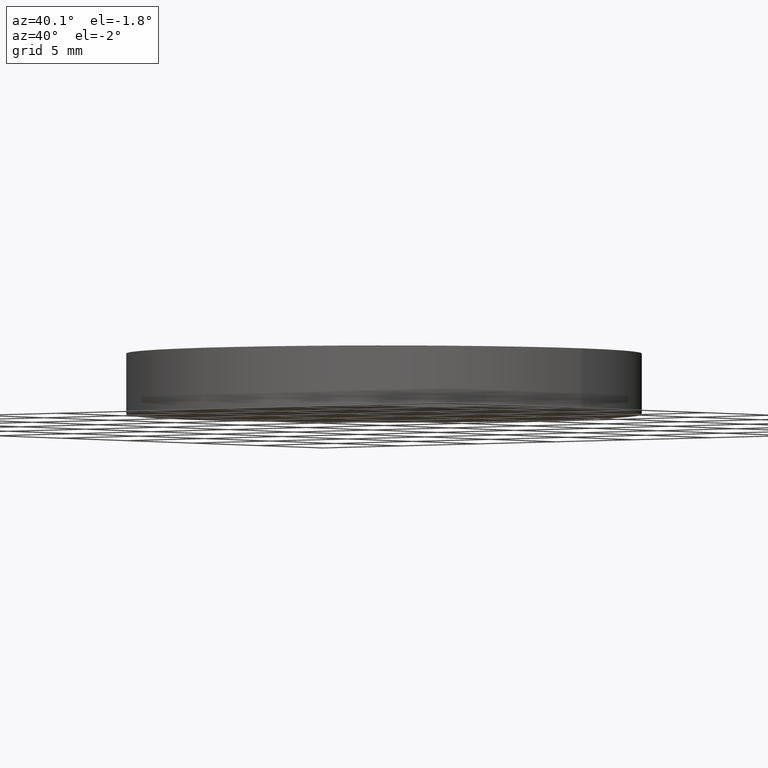
[diagram: clean part render]
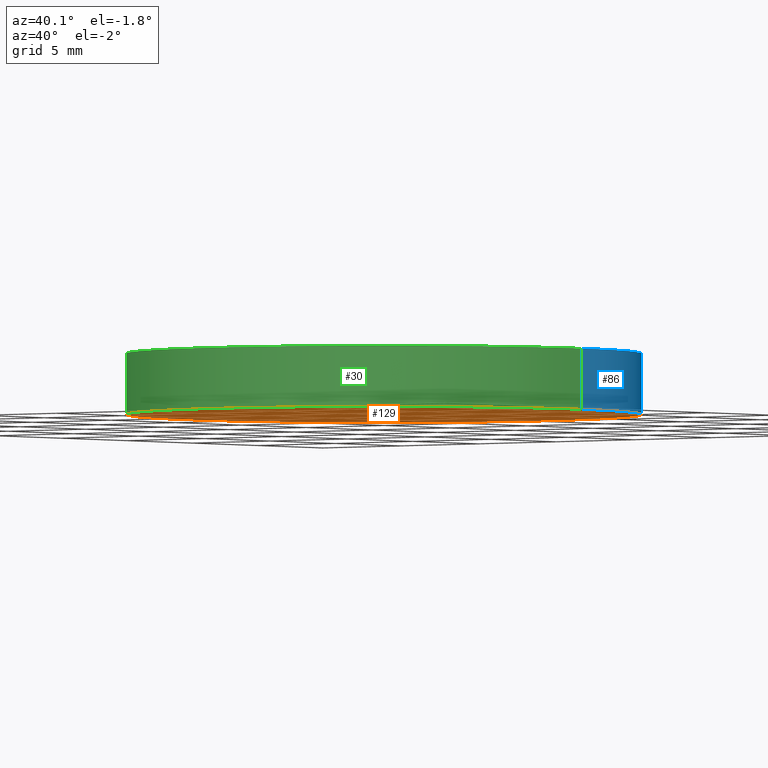
[diagram: same view with three faces highlighted in distinct colors, each labeled with its STEP entity id]
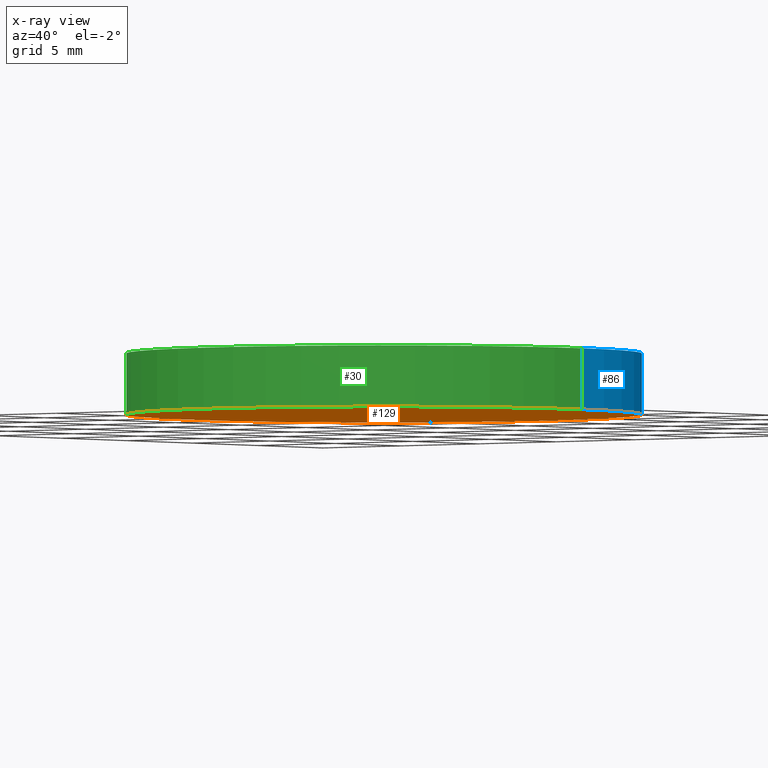
[diagram: x-ray of the same camera — body ghosted, the three highlighted faces saturated]
A machine part, auxiliary view with three faces highlighted in distinct colors.
The next image is the same camera in x-ray (body ghosted, the three faces saturated) — at least one of them is partly hidden behind the body in this view.
Their STEP definitions:

[orange] entity #129 — the highlighted planar face has unit normal (0, 0, 1).
#4 = DIRECTION ( 'NONE',  ( 0.0000000000000000000, 0.0000000000000000000, 1.000000000000000000 ) ) ;
#10 = CIRCLE ( 'NONE', #62, 12.69999999999999900 ) ;
#15 = DIRECTION ( 'NONE',  ( 1.000000000000000000, 0.0000000000000000000, 0.0000000000000000000 ) ) ;
#25 = CARTESIAN_POINT ( 'NONE',  ( 0.0000000000000000000, 0.0000000000000000000, 0.0000000000000000000 ) ) ;
#32 = ORIENTED_EDGE ( 'NONE', *, *, #64, .F. ) ;
#34 = ORIENTED_EDGE ( 'NONE', *, *, #95, .F. ) ;
#47 = DIRECTION ( 'NONE',  ( 0.0000000000000000000, 0.0000000000000000000, 1.000000000000000000 ) ) ;
#50 = AXIS2_PLACEMENT_3D ( 'NONE', #82, #4, #71 ) ;
#62 = AXIS2_PLACEMENT_3D ( 'NONE', #25, #92, #15 ) ;
#63 = FACE_OUTER_BOUND ( 'NONE', #140, .T. ) ;
#64 = EDGE_CURVE ( 'NONE', #94, #134, #10, .T. ) ;
#71 = DIRECTION ( 'NONE',  ( 1.000000000000000000, 0.0000000000000000000, 0.0000000000000000000 ) ) ;
#75 = AXIS2_PLACEMENT_3D ( 'NONE', #133, #47, #111 ) ;
#82 = CARTESIAN_POINT ( 'NONE',  ( 0.0000000000000000000, 0.0000000000000000000, 0.0000000000000000000 ) ) ;
#92 = DIRECTION ( 'NONE',  ( 0.0000000000000000000, 0.0000000000000000000, 1.000000000000000000 ) ) ;
#94 = VERTEX_POINT ( 'NONE', #112 ) ;
#95 = EDGE_CURVE ( 'NONE', #134, #94, #120, .T. ) ;
#111 = DIRECTION ( 'NONE',  ( 1.000000000000000000, 0.0000000000000000000, -0.0000000000000000000 ) ) ;
#112 = CARTESIAN_POINT ( 'NONE',  ( -12.69999999999999900, 0.0000000000000000000, 0.0000000000000000000 ) ) ;
#120 = CIRCLE ( 'NONE', #50, 12.69999999999999900 ) ;
#122 = CARTESIAN_POINT ( 'NONE',  ( 12.69999999999999900, 1.555301434917138400E-015, 0.0000000000000000000 ) ) ;
#129 = ADVANCED_FACE ( 'NONE', ( #63 ), #136, .F. ) ;
#133 = CARTESIAN_POINT ( 'NONE',  ( 0.0000000000000000000, 0.0000000000000000000, 0.0000000000000000000 ) ) ;
#134 = VERTEX_POINT ( 'NONE', #122 ) ;
#136 = PLANE ( 'NONE',  #75 ) ;
#140 = EDGE_LOOP ( 'NONE', ( #32, #34 ) ) ;

[blue] entity #86 — the highlighted cylindrical surface (partial cylindrical patch) has radius 12.7 mm, axis along (-0, -0, -1).
#4 = DIRECTION ( 'NONE',  ( 0.0000000000000000000, 0.0000000000000000000, 1.000000000000000000 ) ) ;
#16 = CARTESIAN_POINT ( 'NONE',  ( -12.69999999999999900, 0.0000000000000000000, 3.000000000000000000 ) ) ;
#18 = DIRECTION ( 'NONE',  ( -0.0000000000000000000, -0.0000000000000000000, -1.000000000000000000 ) ) ;
#21 = AXIS2_PLACEMENT_3D ( 'NONE', #124, #49, #113 ) ;
#24 = DIRECTION ( 'NONE',  ( -0.0000000000000000000, -0.0000000000000000000, -1.000000000000000000 ) ) ;
#28 = ORIENTED_EDGE ( 'NONE', *, *, #95, .T. ) ;
#39 = VERTEX_POINT ( 'NONE', #16 ) ;
#40 = CARTESIAN_POINT ( 'NONE',  ( -12.69999999999999900, 0.0000000000000000000, 3.000000000000000000 ) ) ;
#42 = VECTOR ( 'NONE', #18, 1000.000000000000000 ) ;
#49 = DIRECTION ( 'NONE',  ( 0.0000000000000000000, 0.0000000000000000000, 1.000000000000000000 ) ) ;
#50 = AXIS2_PLACEMENT_3D ( 'NONE', #82, #4, #71 ) ;
#53 = EDGE_CURVE ( 'NONE', #39, #94, #127, .T. ) ;
#55 = ORIENTED_EDGE ( 'NONE', *, *, #53, .F. ) ;
#57 = EDGE_CURVE ( 'NONE', #66, #39, #99, .T. ) ;
#61 = CARTESIAN_POINT ( 'NONE',  ( 0.0000000000000000000, 0.0000000000000000000, 3.000000000000000000 ) ) ;
#66 = VERTEX_POINT ( 'NONE', #73 ) ;
#69 = LINE ( 'NONE', #91, #89 ) ;
#71 = DIRECTION ( 'NONE',  ( 1.000000000000000000, 0.0000000000000000000, 0.0000000000000000000 ) ) ;
#73 = CARTESIAN_POINT ( 'NONE',  ( 12.69999999999999900, 1.555301434917138400E-015, 3.000000000000000000 ) ) ;
#82 = CARTESIAN_POINT ( 'NONE',  ( 0.0000000000000000000, 0.0000000000000000000, 0.0000000000000000000 ) ) ;
#86 = ADVANCED_FACE ( 'NONE', ( #97 ), #117, .T. ) ;
#87 = EDGE_LOOP ( 'NONE', ( #114, #109, #28, #55 ) ) ;
#89 = VECTOR ( 'NONE', #24, 1000.000000000000000 ) ;
#91 = CARTESIAN_POINT ( 'NONE',  ( 12.69999999999999900, 1.555301434917138400E-015, 3.000000000000000000 ) ) ;
#94 = VERTEX_POINT ( 'NONE', #112 ) ;
#95 = EDGE_CURVE ( 'NONE', #134, #94, #120, .T. ) ;
#97 = FACE_OUTER_BOUND ( 'NONE', #87, .T. ) ;
#99 = CIRCLE ( 'NONE', #21, 12.69999999999999900 ) ;
#106 = EDGE_CURVE ( 'NONE', #66, #134, #69, .T. ) ;
#109 = ORIENTED_EDGE ( 'NONE', *, *, #106, .T. ) ;
#112 = CARTESIAN_POINT ( 'NONE',  ( -12.69999999999999900, 0.0000000000000000000, 0.0000000000000000000 ) ) ;
#113 = DIRECTION ( 'NONE',  ( 1.000000000000000000, 0.0000000000000000000, 0.0000000000000000000 ) ) ;
#114 = ORIENTED_EDGE ( 'NONE', *, *, #57, .F. ) ;
#117 = CYLINDRICAL_SURFACE ( 'NONE', #128, 12.69999999999999900 ) ;
#120 = CIRCLE ( 'NONE', #50, 12.69999999999999900 ) ;
#122 = CARTESIAN_POINT ( 'NONE',  ( 12.69999999999999900, 1.555301434917138400E-015, 0.0000000000000000000 ) ) ;
#123 = DIRECTION ( 'NONE',  ( -0.0000000000000000000, -0.0000000000000000000, -1.000000000000000000 ) ) ;
#124 = CARTESIAN_POINT ( 'NONE',  ( 0.0000000000000000000, 0.0000000000000000000, 3.000000000000000000 ) ) ;
#127 = LINE ( 'NONE', #40, #42 ) ;
#128 = AXIS2_PLACEMENT_3D ( 'NONE', #61, #123, #135 ) ;
#134 = VERTEX_POINT ( 'NONE', #122 ) ;
#135 = DIRECTION ( 'NONE',  ( -1.000000000000000000, 0.0000000000000000000, 0.0000000000000000000 ) ) ;

[green] entity #30 — the highlighted cylindrical surface (partial cylindrical patch) has radius 12.7 mm, axis along (-0, -0, -1).
#10 = CIRCLE ( 'NONE', #62, 12.69999999999999900 ) ;
#15 = DIRECTION ( 'NONE',  ( 1.000000000000000000, 0.0000000000000000000, 0.0000000000000000000 ) ) ;
#16 = CARTESIAN_POINT ( 'NONE',  ( -12.69999999999999900, 0.0000000000000000000, 3.000000000000000000 ) ) ;
#18 = DIRECTION ( 'NONE',  ( -0.0000000000000000000, -0.0000000000000000000, -1.000000000000000000 ) ) ;
#22 = CIRCLE ( 'NONE', #29, 12.69999999999999900 ) ;
#24 = DIRECTION ( 'NONE',  ( -0.0000000000000000000, -0.0000000000000000000, -1.000000000000000000 ) ) ;
#25 = CARTESIAN_POINT ( 'NONE',  ( 0.0000000000000000000, 0.0000000000000000000, 0.0000000000000000000 ) ) ;
#26 = DIRECTION ( 'NONE',  ( 0.0000000000000000000, 0.0000000000000000000, 1.000000000000000000 ) ) ;
#27 = CARTESIAN_POINT ( 'NONE',  ( 0.0000000000000000000, 0.0000000000000000000, 3.000000000000000000 ) ) ;
#29 = AXIS2_PLACEMENT_3D ( 'NONE', #103, #26, #93 ) ;
#30 = ADVANCED_FACE ( 'NONE', ( #130 ), #52, .T. ) ;
#37 = DIRECTION ( 'NONE',  ( -1.000000000000000000, 0.0000000000000000000, 0.0000000000000000000 ) ) ;
#39 = VERTEX_POINT ( 'NONE', #16 ) ;
#40 = CARTESIAN_POINT ( 'NONE',  ( -12.69999999999999900, 0.0000000000000000000, 3.000000000000000000 ) ) ;
#42 = VECTOR ( 'NONE', #18, 1000.000000000000000 ) ;
#45 = EDGE_CURVE ( 'NONE', #39, #66, #22, .T. ) ;
#52 = CYLINDRICAL_SURFACE ( 'NONE', #138, 12.69999999999999900 ) ;
#53 = EDGE_CURVE ( 'NONE', #39, #94, #127, .T. ) ;
#58 = ORIENTED_EDGE ( 'NONE', *, *, #53, .T. ) ;
#62 = AXIS2_PLACEMENT_3D ( 'NONE', #25, #92, #15 ) ;
#64 = EDGE_CURVE ( 'NONE', #94, #134, #10, .T. ) ;
#66 = VERTEX_POINT ( 'NONE', #73 ) ;
#69 = LINE ( 'NONE', #91, #89 ) ;
#73 = CARTESIAN_POINT ( 'NONE',  ( 12.69999999999999900, 1.555301434917138400E-015, 3.000000000000000000 ) ) ;
#85 = ORIENTED_EDGE ( 'NONE', *, *, #106, .F. ) ;
#89 = VECTOR ( 'NONE', #24, 1000.000000000000000 ) ;
#91 = CARTESIAN_POINT ( 'NONE',  ( 12.69999999999999900, 1.555301434917138400E-015, 3.000000000000000000 ) ) ;
#92 = DIRECTION ( 'NONE',  ( 0.0000000000000000000, 0.0000000000000000000, 1.000000000000000000 ) ) ;
#93 = DIRECTION ( 'NONE',  ( 1.000000000000000000, 0.0000000000000000000, 0.0000000000000000000 ) ) ;
#94 = VERTEX_POINT ( 'NONE', #112 ) ;
#100 = ORIENTED_EDGE ( 'NONE', *, *, #64, .T. ) ;
#103 = CARTESIAN_POINT ( 'NONE',  ( 0.0000000000000000000, 0.0000000000000000000, 3.000000000000000000 ) ) ;
#106 = EDGE_CURVE ( 'NONE', #66, #134, #69, .T. ) ;
#112 = CARTESIAN_POINT ( 'NONE',  ( -12.69999999999999900, 0.0000000000000000000, 0.0000000000000000000 ) ) ;
#119 = ORIENTED_EDGE ( 'NONE', *, *, #45, .F. ) ;
#122 = CARTESIAN_POINT ( 'NONE',  ( 12.69999999999999900, 1.555301434917138400E-015, 0.0000000000000000000 ) ) ;
#125 = EDGE_LOOP ( 'NONE', ( #85, #119, #58, #100 ) ) ;
#126 = DIRECTION ( 'NONE',  ( -0.0000000000000000000, -0.0000000000000000000, -1.000000000000000000 ) ) ;
#127 = LINE ( 'NONE', #40, #42 ) ;
#130 = FACE_OUTER_BOUND ( 'NONE', #125, .T. ) ;
#134 = VERTEX_POINT ( 'NONE', #122 ) ;
#138 = AXIS2_PLACEMENT_3D ( 'NONE', #27, #126, #37 ) ;